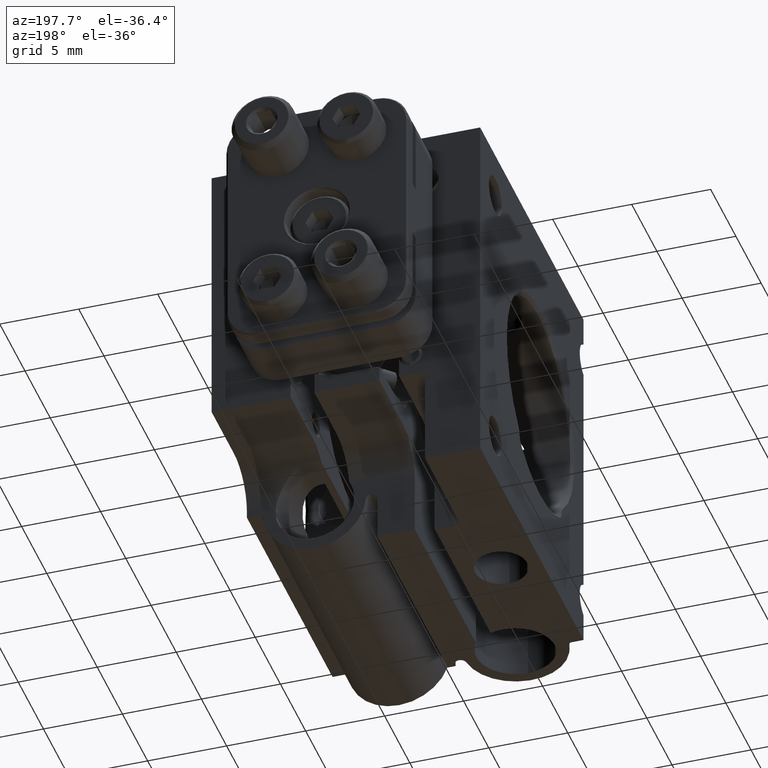
[diagram: clean part render]
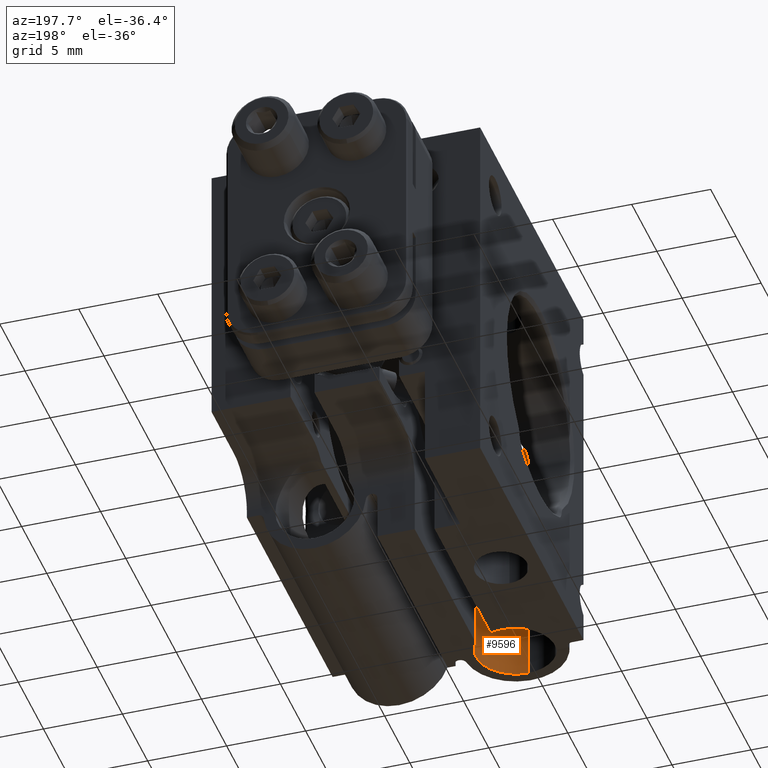
[diagram: same view with one face highlighted and labeled with its STEP entity id]
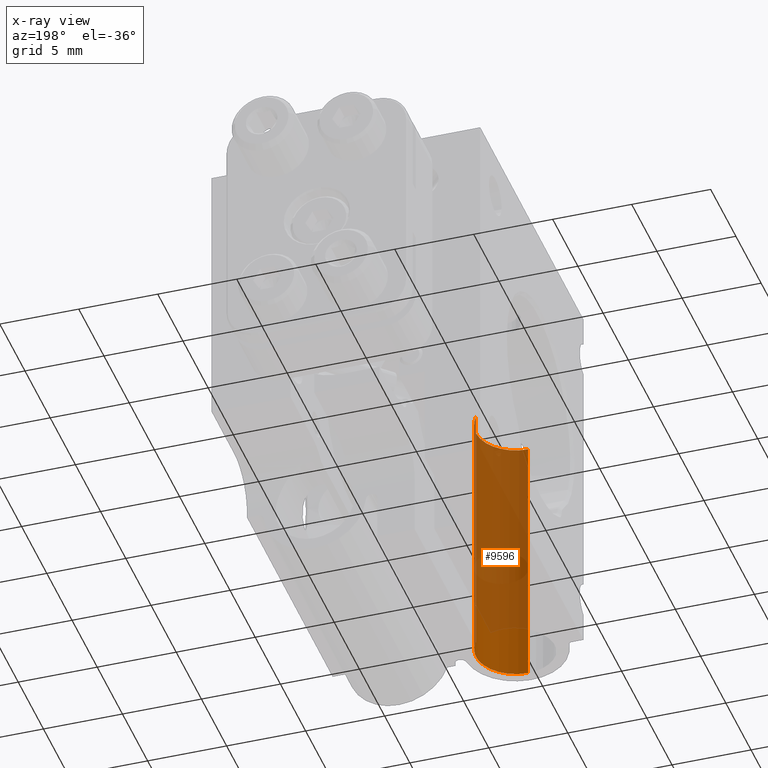
[diagram: x-ray of the same camera — body ghosted, the highlighted face saturated]
A machine part, auxiliary view. The second image highlights one B-rep face of the part: STEP entity #9596.
The next image is the same camera in x-ray: the body ghosted, the highlighted face saturated — about 80% of this face is hidden behind the body in this view.
In plain terms, the highlighted cylindrical surface (partial cylindrical patch) has radius 2.5 mm, axis along (-0, 0, -1).
Its self-contained STEP definition (entity closure, byte-faithful):
#38 = EDGE_LOOP ( 'NONE', ( #50, #11048, #402, #8954, #1391 ) ) ;
#50 = ORIENTED_EDGE ( 'NONE', *, *, #8431, .F. ) ;
#68 = DIRECTION ( 'NONE',  ( -1.734723475976806700E-15, -1.000000000000000000, 0.000000000000000000 ) ) ;
#402 = ORIENTED_EDGE ( 'NONE', *, *, #5736, .T. ) ;
#804 = VECTOR ( 'NONE', #6559, 1000.000000000000000 ) ;
#1391 = ORIENTED_EDGE ( 'NONE', *, *, #5104, .T. ) ;
#1426 = CARTESIAN_POINT ( 'NONE',  ( -4.200000000000000178, 0.3577823863059464982, 25.68764634029930960 ) ) ;
#1546 = DIRECTION ( 'NONE',  ( -0.000000000000000000, 0.000000000000000000, -1.000000000000000000 ) ) ;
#1660 = DIRECTION ( 'NONE',  ( -0.000000000000000000, 0.000000000000000000, -1.000000000000000000 ) ) ;
#1782 = AXIS2_PLACEMENT_3D ( 'NONE', #5238, #7974, #68 ) ;
#2209 = LINE ( 'NONE', #9065, #804 ) ;
#2263 = EDGE_CURVE ( 'NONE', #8668, #8124, #10356, .T. ) ;
#2408 = CARTESIAN_POINT ( 'NONE',  ( -4.200000000000000178, 2.857782386305947053, 25.68764634029930960 ) ) ;
#2590 = CARTESIAN_POINT ( 'NONE',  ( -4.200000000000000178, 0.3577823863059464982, 39.75871415216478511 ) ) ;
#2671 = CARTESIAN_POINT ( 'NONE',  ( -2.036353667725771199, 4.120277480031055539, 25.80257683482200193 ) ) ;
#2708 = CIRCLE ( 'NONE', #1782, 2.500000000000000444 ) ;
#3041 = CARTESIAN_POINT ( 'NONE',  ( -2.124999999999998224, 4.252190863044380542, 8.937646340299302494 ) ) ;
#3469 = CARTESIAN_POINT ( 'NONE',  ( -1.832729358555990506, 3.677784243120791441, 25.70353198184995946 ) ) ;
#5104 = EDGE_CURVE ( 'NONE', #9776, #7578, #2708, .T. ) ;
#5238 = CARTESIAN_POINT ( 'NONE',  ( -4.200000000000000178, 2.857782386305947053, 8.937646340299302494 ) ) ;
#5736 = EDGE_CURVE ( 'NONE', #8124, #9403, #9447, .T. ) ;
#5805 = AXIS2_PLACEMENT_3D ( 'NONE', #6052, #1660, #8685 ) ;
#6052 = CARTESIAN_POINT ( 'NONE',  ( -4.200000000000000178, 2.857782386305947053, 39.75871415216478511 ) ) ;
#6190 = CARTESIAN_POINT ( 'NONE',  ( -2.124999999999998668, 4.252190863044379654, 25.85311566439495579 ) ) ;
#6371 = CARTESIAN_POINT ( 'NONE',  ( -2.124999999999998668, 4.252190863044379654, 25.85311566439495579 ) ) ;
#6559 = DIRECTION ( 'NONE',  ( 0.000000000000000000, -0.000000000000000000, 1.000000000000000000 ) ) ;
#7578 = VERTEX_POINT ( 'NONE', #9940 ) ;
#7635 = AXIS2_PLACEMENT_3D ( 'NONE', #2408, #10179, #9215 ) ;
#7845 = LINE ( 'NONE', #2590, #8197 ) ;
#7848 = FACE_OUTER_BOUND ( 'NONE', #38, .T. ) ;
#7974 = DIRECTION ( 'NONE',  ( -0.000000000000000000, -0.000000000000000000, -1.000000000000000000 ) ) ;
#7992 = EDGE_CURVE ( 'NONE', #9776, #9403, #2209, .T. ) ;
#8124 = VERTEX_POINT ( 'NONE', #10204 ) ;
#8197 = VECTOR ( 'NONE', #1546, 1000.000000000000000 ) ;
#8431 = EDGE_CURVE ( 'NONE', #8668, #7578, #7845, .T. ) ;
#8668 = VERTEX_POINT ( 'NONE', #1426 ) ;
#8685 = DIRECTION ( 'NONE',  ( 0.000000000000000000, 1.000000000000000000, 0.000000000000000000 ) ) ;
#8820 = CARTESIAN_POINT ( 'NONE',  ( -1.958710039494600430, 3.977153927823877222, 25.76079565931851079 ) ) ;
#8954 = ORIENTED_EDGE ( 'NONE', *, *, #7992, .F. ) ;
#9065 = CARTESIAN_POINT ( 'NONE',  ( -2.124999999999998668, 4.252190863044379654, 39.75871415216478511 ) ) ;
#9215 = DIRECTION ( 'NONE',  ( 0.000000000000000000, 1.000000000000000000, 0.000000000000000000 ) ) ;
#9403 = VERTEX_POINT ( 'NONE', #6371 ) ;
#9447 = B_SPLINE_CURVE_WITH_KNOTS ( 'NONE', 3,
 ( #10424, #9571, #3469, #8820, #2671, #6190 ),
 .UNSPECIFIED., .F., .F.,
 ( 4, 2, 4 ),
 ( 0.000000000000000000, 0.0004930744404164831519, 0.0009861488808329652196 ),
 .UNSPECIFIED. ) ;
#9571 = CARTESIAN_POINT ( 'NONE',  ( -1.783928185166371083, 3.521496129780921969, 25.68764634029931671 ) ) ;
#9596 = ADVANCED_FACE ( 'NONE', ( #7848 ), #11213, .F. ) ;
#9776 = VERTEX_POINT ( 'NONE', #3041 ) ;
#9940 = CARTESIAN_POINT ( 'NONE',  ( -4.200000000000000178, 0.3577823863059464982, 8.937646340299302494 ) ) ;
#10179 = DIRECTION ( 'NONE',  ( 0.000000000000000000, -0.000000000000000000, 1.000000000000000000 ) ) ;
#10204 = CARTESIAN_POINT ( 'NONE',  ( -1.750510257216822296, 3.357782386305949274, 25.68764634029930960 ) ) ;
#10356 = CIRCLE ( 'NONE', #7635, 2.500000000000000444 ) ;
#10424 = CARTESIAN_POINT ( 'NONE',  ( -1.750510257216822296, 3.357782386305949274, 25.68764634029930960 ) ) ;
#11048 = ORIENTED_EDGE ( 'NONE', *, *, #2263, .T. ) ;
#11213 = CYLINDRICAL_SURFACE ( 'NONE', #5805, 2.500000000000000444 ) ;